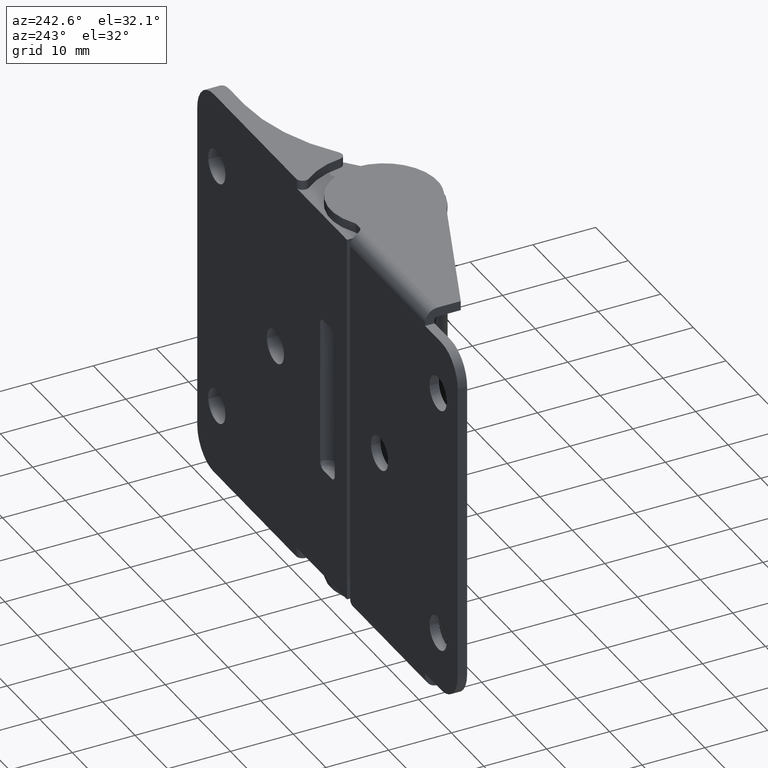
[diagram: clean part render]
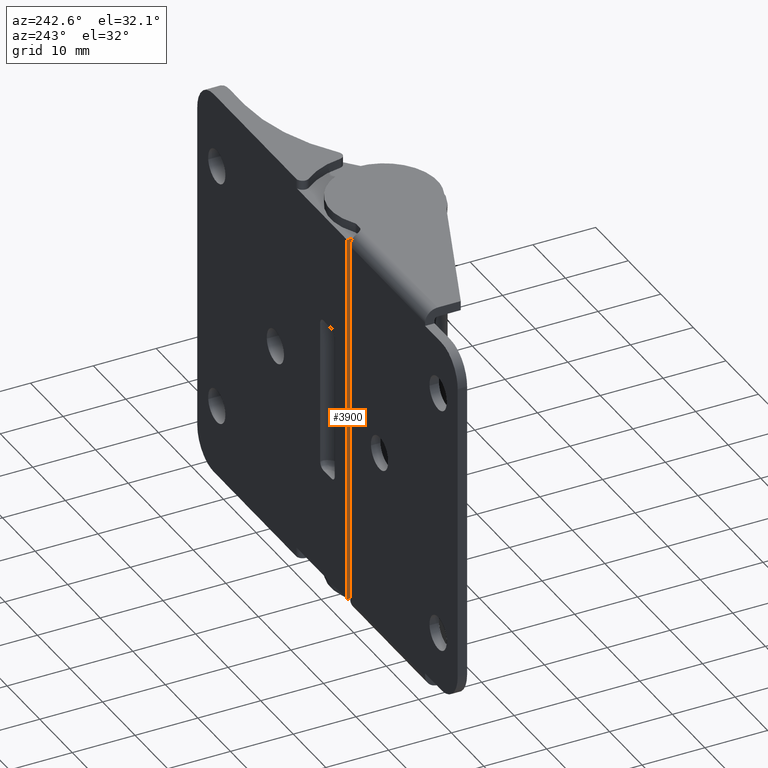
[diagram: same view with one face highlighted and labeled with its STEP entity id]
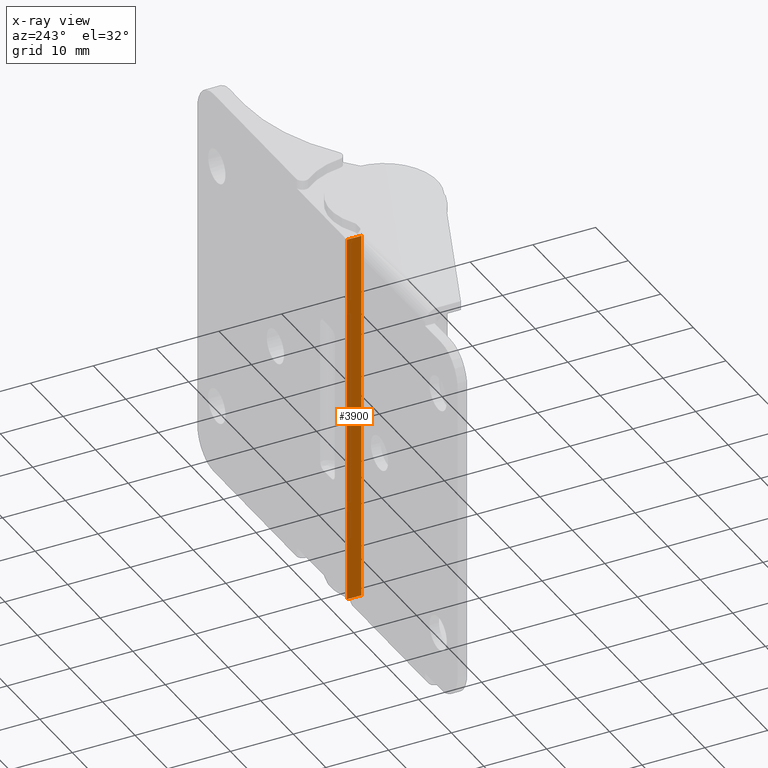
[diagram: x-ray of the same camera — body ghosted, the highlighted face saturated]
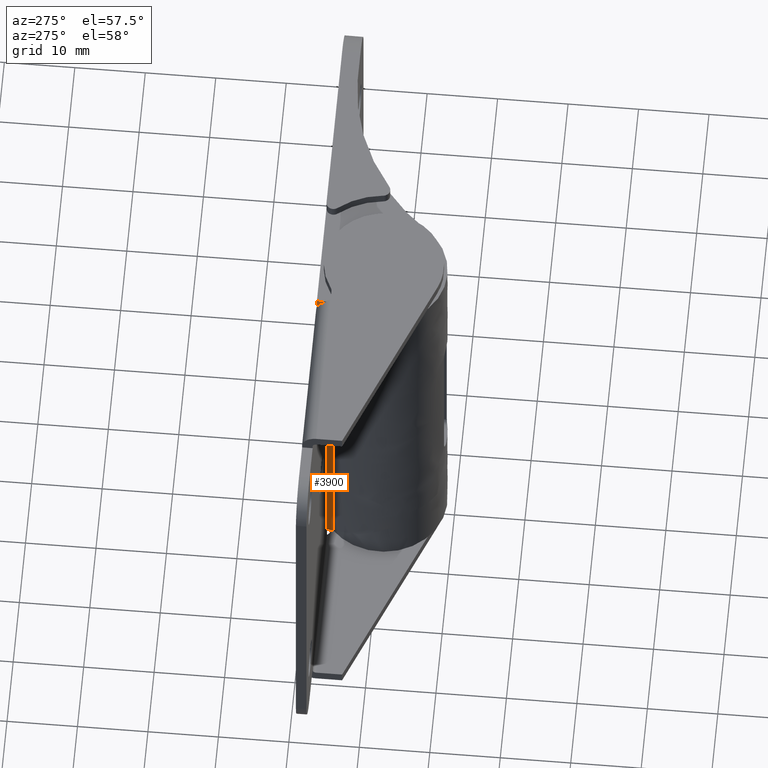
[diagram: same view with one face highlighted and labeled with its STEP entity id]
A machine part, auxiliary view. The second image highlights one B-rep face of the part: STEP entity #3900.
The next image is the same camera in x-ray: the body ghosted, the highlighted face saturated — about 0% of this face is hidden behind the body in this view.
A second angle (auxiliary view) of the same face is appended — the face is thin or edge-on in the first view.
In plain terms, the highlighted face is a freeform B-spline surface patch.
Its self-contained STEP definition (entity closure, byte-faithful):
#2931=CARTESIAN_POINT('',(-6.000014999999790,6.708190516061500,1.499999999999946));
#2932=VERTEX_POINT('',#2931);
#2950=CARTESIAN_POINT('',(-6.000014999999790,9.0,1.499999999999918));
#2951=VERTEX_POINT('',#2950);
#2952=CARTESIAN_POINT('',(-6.000014999999790,6.708190516061500,1.499999999999946));
#2953=CARTESIAN_POINT('',(-6.000014999999790,9.0,1.499999999999918));
#2954=QUASI_UNIFORM_CURVE('',1,(#2952,#2953),.UNSPECIFIED.,.F.,.U.);
#2955=EDGE_CURVE('',#2932,#2951,#2954,.T.);
#3211=CARTESIAN_POINT('',(-6.000014999999790,6.708190516061500,61.500000000000000));
#3212=VERTEX_POINT('',#3211);
#3296=CARTESIAN_POINT('',(-6.000014999999790,9.0,61.500000000000000));
#3297=VERTEX_POINT('',#3296);
#3303=CARTESIAN_POINT('',(-6.000014999999790,9.0,61.500000000000000));
#3304=CARTESIAN_POINT('',(-6.000014999999790,6.708190516061500,61.500000000000000));
#3305=QUASI_UNIFORM_CURVE('',1,(#3303,#3304),.UNSPECIFIED.,.F.,.U.);
#3306=EDGE_CURVE('',#3297,#3212,#3305,.T.);
#3881=CARTESIAN_POINT('',(-6.000014999999790,6.593714550725272,-1.496999883708440));
#3882=CARTESIAN_POINT('',(-6.000014999999790,6.593714550725272,64.497001493033764));
#3883=CARTESIAN_POINT('',(-6.000014999999790,9.114475944845854,-1.496999883708440));
#3884=CARTESIAN_POINT('',(-6.000014999999790,9.114475944845854,64.497001493033764));
#3885=B_SPLINE_SURFACE_WITH_KNOTS('',1,1,((#3881,#3883),(#3882,#3884)),.UNSPECIFIED.,.F.,.F.,.U.,(2,2),(2,2),(0.0,65.994001376742204),(0.0,2.520761394120582),.UNSPECIFIED.);
#3886=ORIENTED_EDGE('',*,*,#2955,.F.);
#3887=CARTESIAN_POINT('',(-6.000014999999790,6.708190516061500,61.500000000000000));
#3888=CARTESIAN_POINT('',(-6.000014999999790,6.708190516061500,1.499999999999946));
#3889=QUASI_UNIFORM_CURVE('',1,(#3887,#3888),.UNSPECIFIED.,.F.,.U.);
#3890=EDGE_CURVE('',#3212,#2932,#3889,.T.);
#3891=ORIENTED_EDGE('',*,*,#3890,.F.);
#3892=ORIENTED_EDGE('',*,*,#3306,.F.);
#3893=CARTESIAN_POINT('',(-6.000014999999790,9.0,61.500000000000000));
#3894=CARTESIAN_POINT('',(-6.000014999999790,9.0,1.499999999999918));
#3895=QUASI_UNIFORM_CURVE('',1,(#3893,#3894),.UNSPECIFIED.,.F.,.U.);
#3896=EDGE_CURVE('',#3297,#2951,#3895,.T.);
#3897=ORIENTED_EDGE('',*,*,#3896,.T.);
#3898=EDGE_LOOP('',(#3886,#3891,#3892,#3897));
#3899=FACE_OUTER_BOUND('',#3898,.T.);
#3900=ADVANCED_FACE('',(#3899),#3885,.T.);